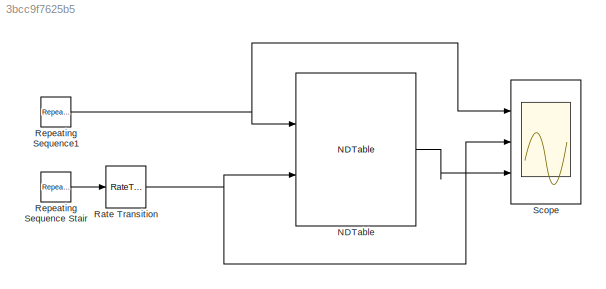
MODEL slx_3bcc9f7625b5
KIND model
BLOCK [Reference] NDTable  REF=NDTable/NDTable
  Ports = [2, 1]
  SourceBlock = NDTable/NDTable
  dataset = '/I_f'
  extrap_method = Linear
  filename = 'diode.sdf'
  interp_method = Linear
BLOCK [RateTransition] Rate Transition
BLOCK [Reference] Repeating Sequence Stair  REF=simulink/Sources/Repeating
Sequence
Stair
  ConRadixGroup = Best Precision: Vector-wise
  LockScale = off
  OutDataType = fixdt(0,8)
  OutDataTypeStr = double
  OutMax = []
  OutMin = []
  OutScaling = 2^-12
  OutValues = [289.15 398.15 423.15]
  OutputDataTypeScalingMode = double
  Ports = [0, 1]
  SourceBlock = simulink/Sources/Repeating\nSequence\nStair
  SourceType = Repeating Sequence Stair
  tsamp = 1
BLOCK [Reference] Repeating Sequence1  REF=simulink/Sources/Repeating
Sequence
  Ports = [0, 1]
  SourceBlock = simulink/Sources/Repeating\nSequence
  SourceType = Repeating table
  rep_seq_t = [0 1]
  rep_seq_y = [0 1.92]
BLOCK [Scope] Scope
  Floating = off
  LimitDataPoints = off
  NumInputPorts = 3
  Ports = [3]
  ShowLegends = off
  TimeRange = 10
  YMax = 2~450~2000
  YMin = 0~0~-500
  ZoomMode = yonly
LINE NDTable:1 -> Scope:3
NET Rate Transition:1 -> NDTable:2, Scope:2
LINE Repeating Sequence Stair:1 -> Rate Transition:1
NET Repeating Sequence1:1 -> NDTable:1, Scope:1
note: NET lines group one-source signal fan-out (src -> all destinations, sorted); 1:1 wires keep LINE
